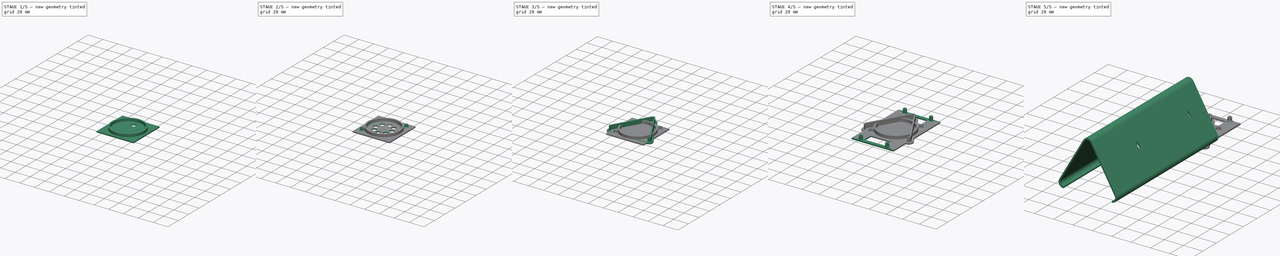
[diagram: build sequence overview — one tinted view per stage of 5, left to right]
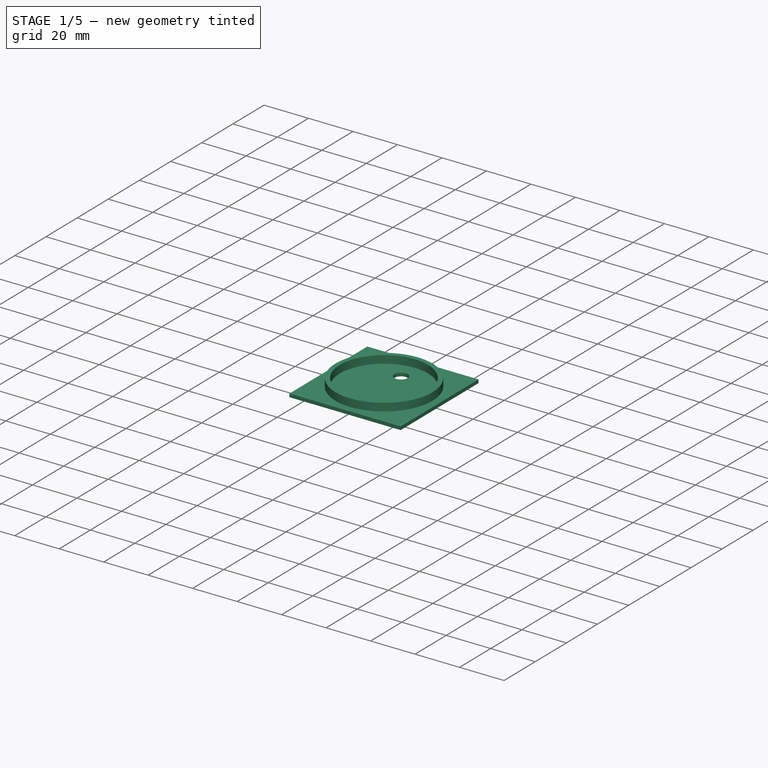
[diagram: stage 1 of 5 — iso view after this stage's code; geometry added in this stage tinted green]
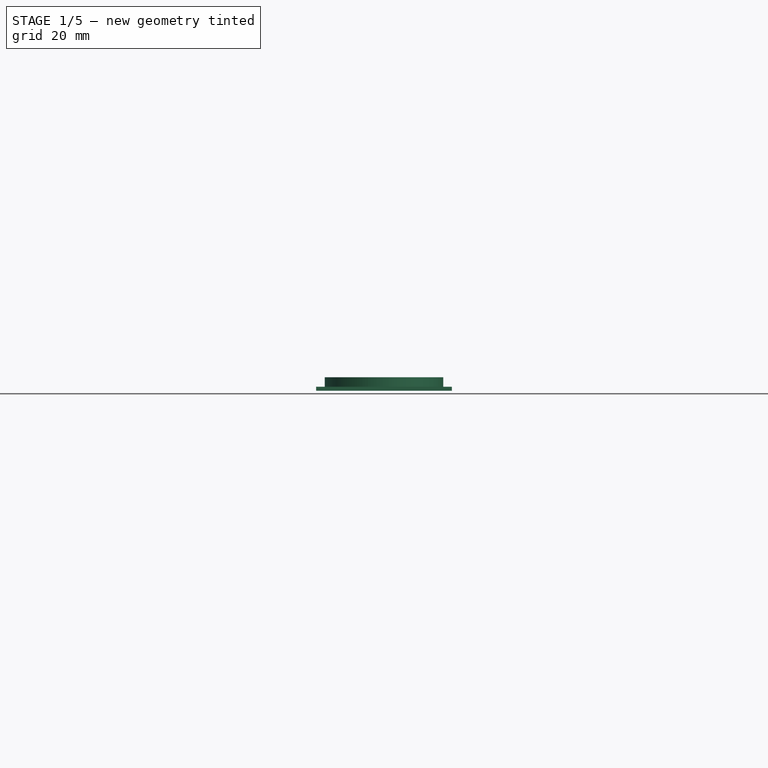
[diagram: stage 1 of 5 — front view after this stage's code; geometry added in this stage tinted green]
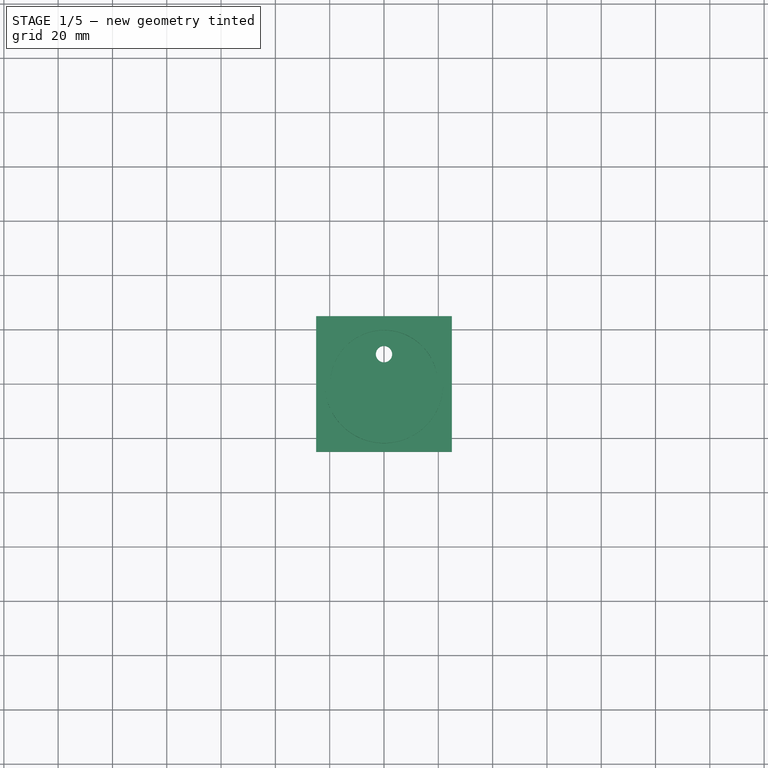
[diagram: stage 1 of 5 — top view after this stage's code; geometry added in this stage tinted green]
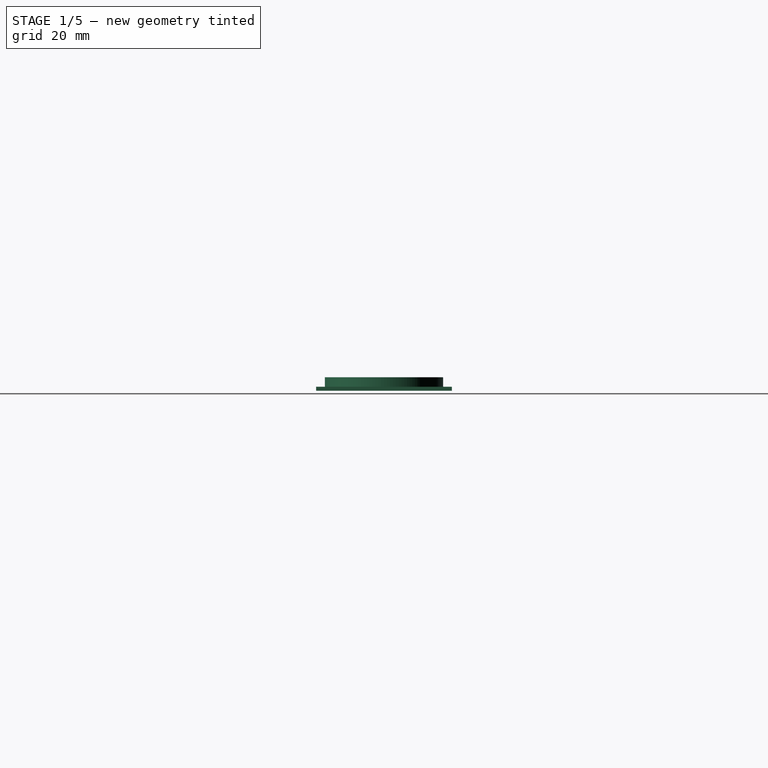
[diagram: stage 1 of 5 — right view after this stage's code; geometry added in this stage tinted green]
FCSTD DOCUMENT  (FreeCAD 0.21R33694 (Git))
Label: dinger
License: All rights reserved
LicenseURL: http://en.wikipedia.org/wiki/All_rights_reserved
objects: Sketcher::SketchObject×13, PartDesign::Pad×10, PartDesign::Body×5, PartDesign::Pocket×3, PartDesign::PolarPattern×2, PartDesign::Fillet×2
note: 50 computed .brp shape members not serialized (recipe doc carries the construction recipe); baked Part::Feature solids carry a one-line shape summary decoded from their .brp

FEATURE [Sketcher::SketchObject] Sketch004
  FullyConstrained = true
  MapMode = 5
  Support = -> [XY_Plane002]
  sketch-geometry (2):
    g0: Circle CenterX=0 CenterY=0 CenterZ=0 NormalX=0 NormalY=0 NormalZ=1 AngleXU=0 Radius=19
    g1: Circle CenterX=0 CenterY=0 CenterZ=0 NormalX=0 NormalY=0 NormalZ=1 AngleXU=0 Radius=20
  constraints (4):
    c: Coincident(g0,g-1)
    c: Coincident(g1,g0)
    c: Diameter(g1) = 40
    c: Diameter(g0) = 38
FEATURE [Sketcher::SketchObject] Sketch005
  FullyConstrained = true
  MapMode = 5
  Support = -> [XY_Plane002]
  sketch-geometry (2):
    g0: Circle CenterX=0 CenterY=0 CenterZ=0 NormalX=0 NormalY=0 NormalZ=1 AngleXU=0 Radius=19
    g1: Circle CenterX=0 CenterY=11 CenterZ=0 NormalX=0 NormalY=0 NormalZ=1 AngleXU=0 Radius=3
  constraints (5):
    c: Coincident(g0,g-1)
    c: Diameter(g0) = 38
    c: PointOnObject(g1,g-2)
    c: DistanceY(g0,g1) = 11
    c: Diameter(g1) = 6
FEATURE [Sketcher::SketchObject] Sketch006
  FullyConstrained = true
  MapMode = 5
  Support = -> [XY_Plane002]
  sketch-geometry (2):
    g0: Circle CenterX=0 CenterY=0 CenterZ=0 NormalX=0 NormalY=0 NormalZ=1 AngleXU=0 Radius=19.8
    g1: Circle CenterX=0 CenterY=0 CenterZ=0 NormalX=0 NormalY=0 NormalZ=1 AngleXU=0 Radius=21.8
  constraints (4):
    c: Coincident(g0,g-1)
    c: Coincident(g1,g0)
    c: Diameter(g0) = 39.6
    c: Diameter(g1) = 43.6
FEATURE [Sketcher::SketchObject] Sketch007
  FullyConstrained = true
  MapMode = 5
  Support = -> [XY_Plane002]
  sketch-geometry (6):
    g0: LineSegment StartX=-25 StartY=25 StartZ=0 EndX=-25 EndY=-25 EndZ=0
    g1: LineSegment StartX=-25 StartY=-25 StartZ=0 EndX=25 EndY=-25 EndZ=0
    g2: LineSegment StartX=25 StartY=-25 StartZ=0 EndX=25 EndY=25 EndZ=0
    g3: LineSegment StartX=25 StartY=25 StartZ=0 EndX=-25 EndY=25 EndZ=0
    g4: GeomPoint X=0 Y=0 Z=0
    g5: Circle CenterX=0 CenterY=0 CenterZ=0 NormalX=0 NormalY=0 NormalZ=1 AngleXU=0 Radius=19
  constraints (14):
    c: Coincident(g0,g1)
    c: Coincident(g1,g2)
    c: Coincident(g2,g3)
    c: Coincident(g3,g0)
    c: Horizontal(g1)
    c: Horizontal(g3)
    c: Vertical(g0)
    c: Vertical(g2)
    c: Symmetric(g1,g0,g4)
    c: Coincident(g4,g-1)
    c: DistanceX(g3,g3) = 50
    c: DistanceY(g2,g2) = 50
    c: Coincident(g5,g4)
    c: Diameter(g5) = 38
FEATURE [PartDesign::Pad] Pad003
  Direction = (0,0,1)
  Length = 1.5
  Length2 = 10
  Profile = -> Sketch007
  ReferenceAxis = -> Sketch007 [N_Axis]
  Type = 0
FEATURE [PartDesign::Pad] Pad004
  BaseFeature = -> Pad003
  Direction = (0,0,1)
  Length = 5
  Length2 = 10
  Profile = -> Sketch006
  ReferenceAxis = -> Sketch006 [N_Axis]
  Type = 0
FEATURE [PartDesign::Pocket] Pocket001
  BaseFeature = -> Pad004
  Direction = (0,0,-1)
  Length = 5
  Length2 = 5
  Midplane = true
  Profile = -> Sketch005
  ReferenceAxis = -> Sketch005 [N_Axis]
  Type = 1
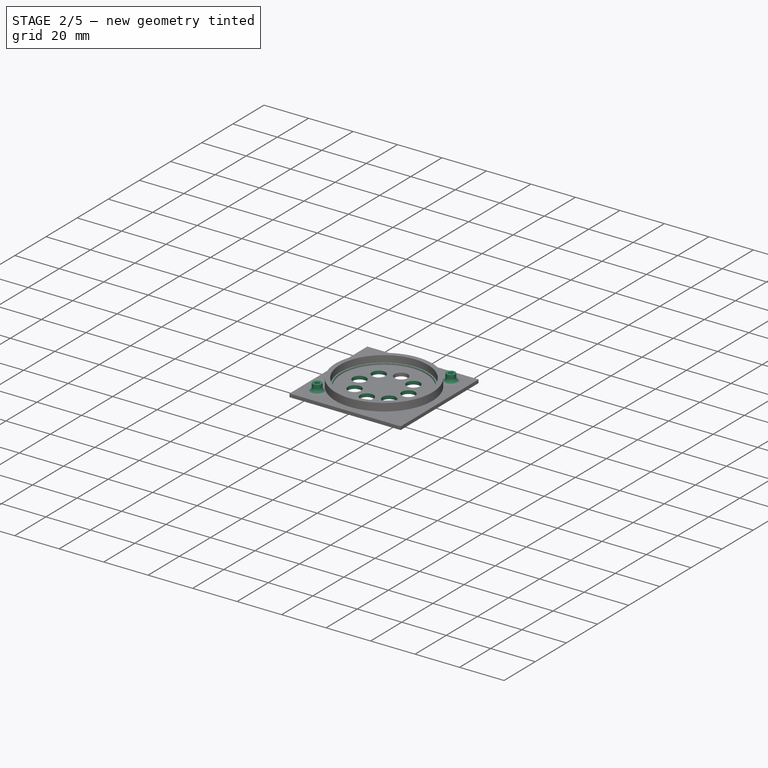
[diagram: stage 2 of 5 — iso view after this stage's code; geometry added in this stage tinted green]
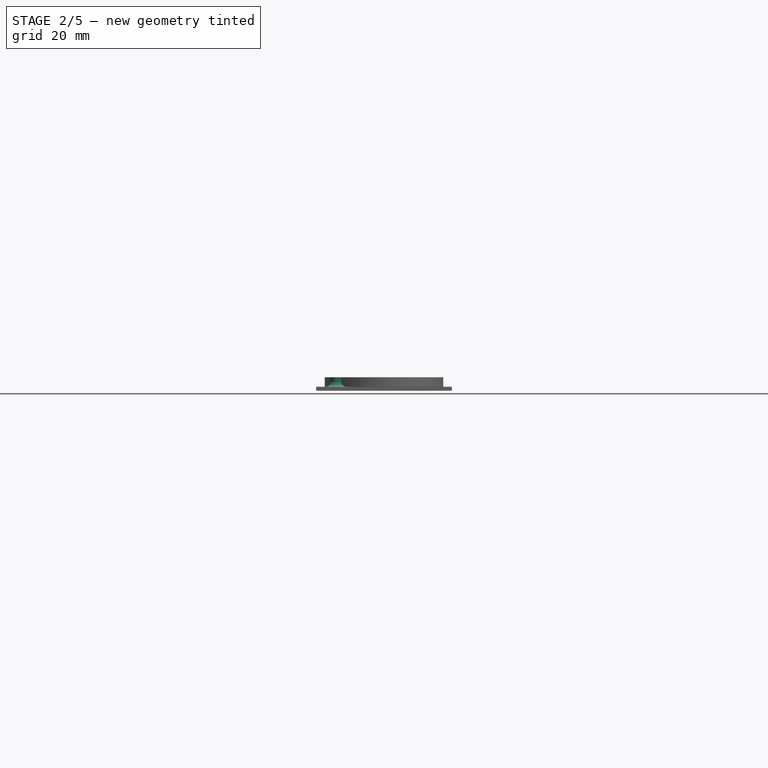
[diagram: stage 2 of 5 — front view after this stage's code; geometry added in this stage tinted green]
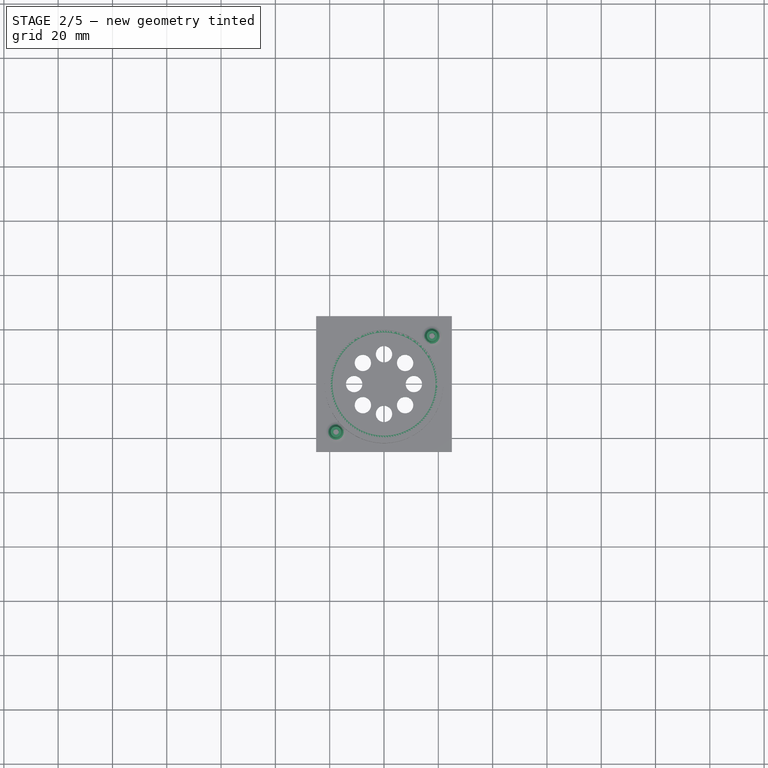
[diagram: stage 2 of 5 — top view after this stage's code; geometry added in this stage tinted green]
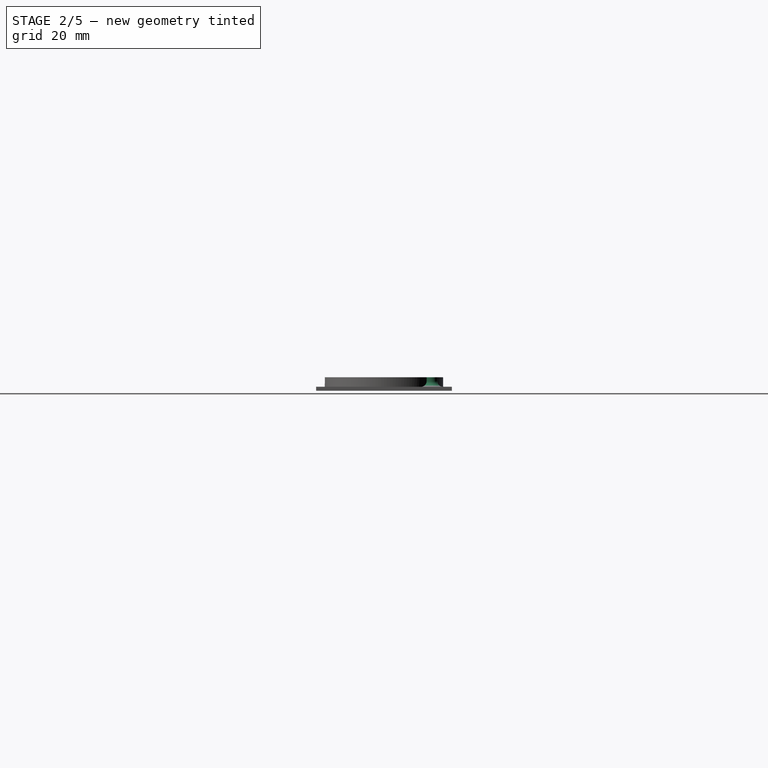
[diagram: stage 2 of 5 — right view after this stage's code; geometry added in this stage tinted green]
FEATURE [PartDesign::PolarPattern] PolarPattern
  Angle = 360
  Axis = -> Sketch005 [N_Axis]
  BaseFeature = -> Pocket001
  Occurrences = 8
  Originals = -> [Pocket001]
FEATURE [PartDesign::Pad] Pad005
  BaseFeature = -> PolarPattern
  Direction = (0,0,1)
  Length = 2
  Length2 = 10
  Profile = -> Sketch004
  ReferenceAxis = -> Sketch004 [N_Axis]
  Type = 0
FEATURE [PartDesign::Body] Body004  label="caps"
  Group = -> [Sketch012,Pad007,Sketch013,Pad008,Sketch014,Pocket,PolarPattern001]
  Origin = -> Origin004
  Placement = pos=(72,-39,0) rot=(0,0,1;0rad)
  Tip = -> PolarPattern001
FEATURE [Sketcher::SketchObject] Sketch015
  FullyConstrained = true
  MapMode = 5
  Support = -> [XY_Plane002]
  sketch-geometry (6):
    g0: GeomPoint X=3e-16 Y=-1e-16 Z=0
    g1: Circle CenterX=-17.6777 CenterY=-17.6777 CenterZ=0 NormalX=0 NormalY=0 NormalZ=1 AngleXU=0 Radius=1
    g2: Circle CenterX=-17.6777 CenterY=-17.6777 CenterZ=0 NormalX=0 NormalY=0 NormalZ=1 AngleXU=0 Radius=2
    g3: Circle CenterX=17.6777 CenterY=17.6777 CenterZ=0 NormalX=0 NormalY=0 NormalZ=1 AngleXU=0 Radius=1
    g4: Circle CenterX=17.6777 CenterY=17.6777 CenterZ=0 NormalX=0 NormalY=0 NormalZ=1 AngleXU=0 Radius=2
    g5: LineSegment StartX=3e-16 StartY=-1e-16 StartZ=0 EndX=17.6777 EndY=17.6777 EndZ=0
  constraints (12):
    c: Coincident(g0,g-1)
    c: Distance(g1,g3) = 50
    c: Coincident(g2,g1)
    c: Coincident(g4,g3)
    c: Equal(g4,g2)
    c: Equal(g1,g3)
    c: Diameter(g2) = 4
    c: Diameter(g1) = 2
    c: Symmetric(g1,g3,g0)
    c: Coincident(g5,g0)
    c: Coincident(g5,g3)
    c: Angle(g-1,g5) = 0.785398
FEATURE [PartDesign::Pad] Pad009
  BaseFeature = -> Pad005
  Direction = (0,0,1)
  Length = 5
  Length2 = 10
  Profile = -> Sketch015
  ReferenceAxis = -> Sketch015 [N_Axis]
  Type = 0
FEATURE [PartDesign::Fillet] Fillet001
  Base = -> Pad009 [Edge16,Edge18]
  BaseFeature = -> Pad009
  Radius = 2
  SupportTransform = false
  UseAllEdges = false
FEATURE [PartDesign::Body] Body002  label="speaker"
  Group = -> [Sketch007,Pad003,Sketch006,Pad004,Sketch005,Pocket001,PolarPattern,Sketch004,Pad005,Sketch015,Pad009,Fillet001]
  Origin = -> Origin002
  Placement = pos=(0,-125,0) rot=(0,0,1;0rad)
  Tip = -> Fillet001
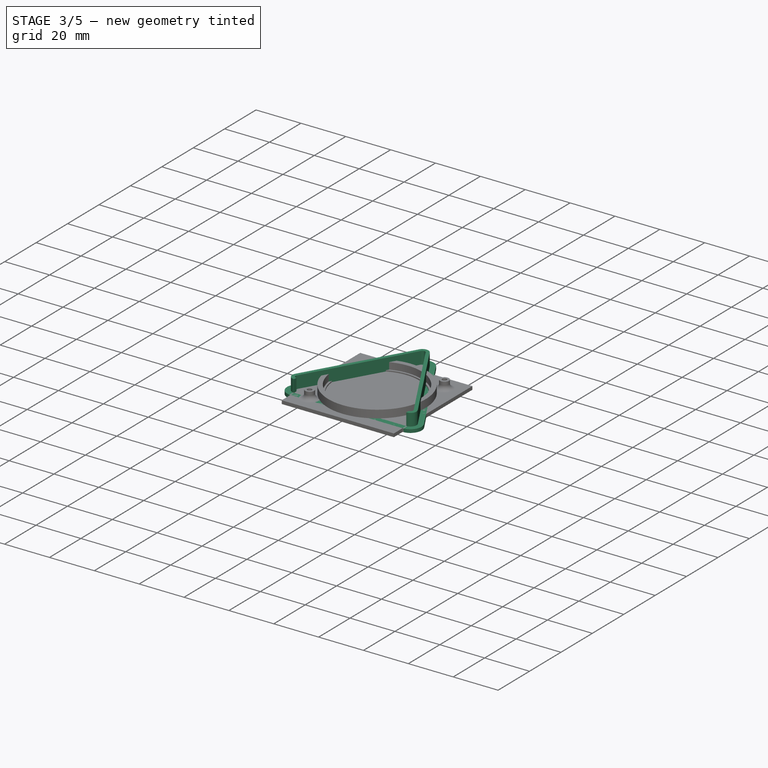
[diagram: stage 3 of 5 — iso view after this stage's code; geometry added in this stage tinted green]
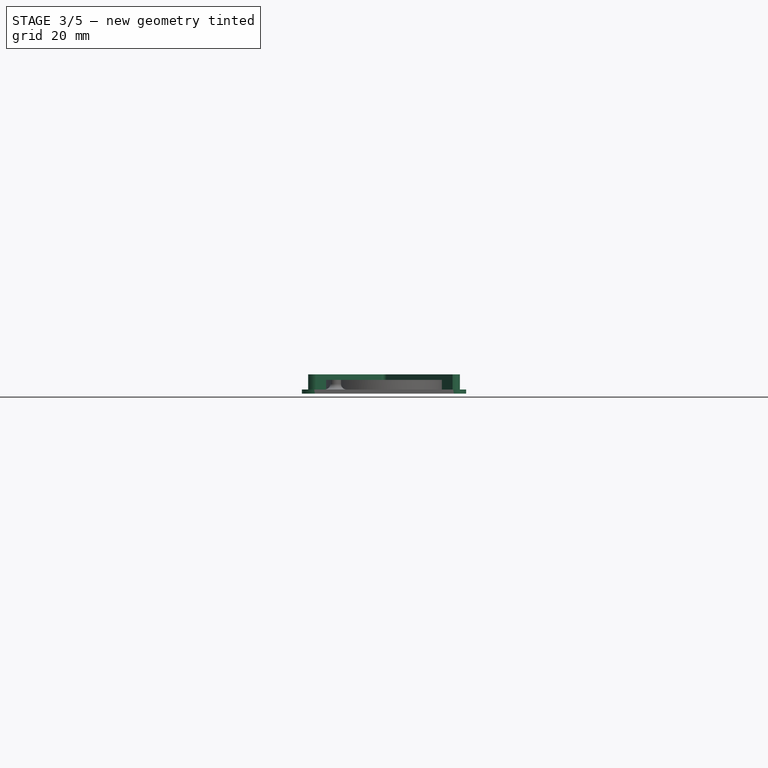
[diagram: stage 3 of 5 — front view after this stage's code; geometry added in this stage tinted green]
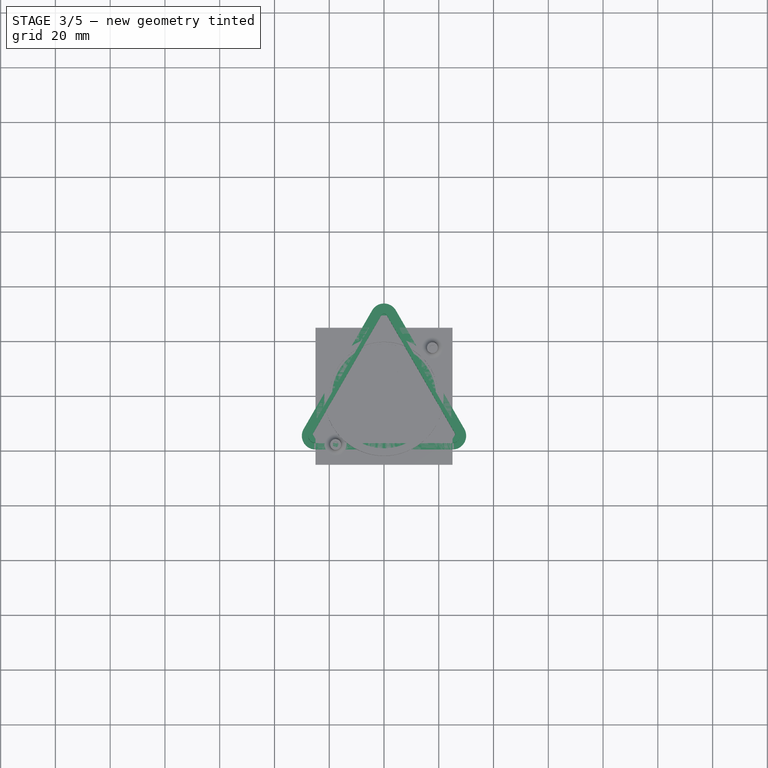
[diagram: stage 3 of 5 — top view after this stage's code; geometry added in this stage tinted green]
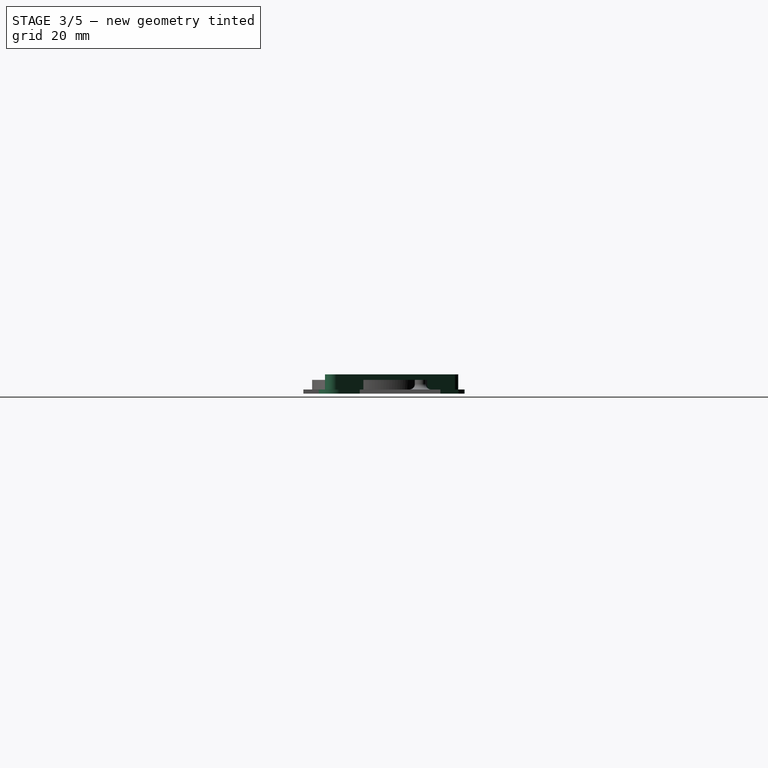
[diagram: stage 3 of 5 — right view after this stage's code; geometry added in this stage tinted green]
FEATURE [PartDesign::Body] Body003  label="button"
  Group = -> [Sketch011,Pad006]
  Origin = -> Origin003
  Placement = pos=(0,-10,0) rot=(0,0,1;0rad)
  Tip = -> Pad006
FEATURE [Sketcher::SketchObject] Sketch013
  FullyConstrained = true
  MapMode = 5
  Support = -> [XY_Plane004]
  sketch-geometry (9):
    g0: LineSegment StartX=29.3301 StartY=-11.9338 StartZ=0 EndX=4.33013 EndY=31.3675 EndZ=0
    g1: LineSegment StartX=-4.33013 StartY=31.3675 StartZ=0 EndX=-29.3301 EndY=-11.9338 EndZ=0
    g2: ArcOfCircle CenterX=0 CenterY=28.8675 CenterZ=0 NormalX=0 NormalY=0 NormalZ=1 AngleXU=0 Radius=5 StartAngle=0.523599 EndAngle=2.61799
    g3: ArcOfCircle CenterX=-25 CenterY=-14.4338 CenterZ=0 NormalX=0 NormalY=0 NormalZ=1 AngleXU=0 Radius=5 StartAngle=2.61799 EndAngle=4.71239
    g4: ArcOfCircle CenterX=25 CenterY=-14.4338 CenterZ=0 NormalX=0 NormalY=0 NormalZ=1 AngleXU=0 Radius=5 StartAngle=4.71239 EndAngle=6.80678
    g5: LineSegment StartX=25 StartY=-19.4338 StartZ=0 EndX=-25 EndY=-19.4338 EndZ=0
    g6: LineSegment StartX=0 StartY=28.8675 StartZ=0 EndX=0 EndY=0 EndZ=0
    g7: LineSegment StartX=-25 StartY=-14.4338 StartZ=0 EndX=0 EndY=0 EndZ=0
    g8: LineSegment StartX=0 StartY=0 StartZ=0 EndX=25 EndY=-14.4338 EndZ=0
  constraints (21):
    c: Distance(g1) = 50
    c: Diameter(g2) = 10
    c: Tangent(g5,g3) = 1.5708
    c: Tangent(g5,g4) = 1.5708
    c: Equal(g0,g5)
    c: Horizontal(g5)
    c: Equal(g4,g2)
    c: Equal(g2,g3)
    c: Equal(g1,g5)
    c: Tangent(g1,g3) = -1.5708
    c: Tangent(g0,g4) = -1.5708
    c: Tangent(g2,g0) = -1.5708
    c: Tangent(g1,g2) = -1.5708
    c: PointOnObject(g2,g-2)
    c: Coincident(g6,g2)
    c: Coincident(g6,g-1)
    c: Coincident(g7,g3)
    c: Coincident(g7,g6)
    c: Coincident(g8,g6)
    c: Coincident(g8,g4)
    c: Equal(g6,g7)
FEATURE [Sketcher::SketchObject] Sketch012
  ExternalGeometry = -> [Sketch013]
  FullyConstrained = true
  MapMode = 5
  Support = -> [XY_Plane004]
  sketch-geometry (25):
    g0: LineSegment StartX=27.3383 StartY=-13.0838 StartZ=0 EndX=2.33827 EndY=30.2175 EndZ=0
    g1: LineSegment StartX=-2.33827 StartY=30.2175 StartZ=0 EndX=-27.3383 EndY=-13.0838 EndZ=0
    g2: ArcOfCircle CenterX=0 CenterY=28.8675 CenterZ=0 NormalX=0 NormalY=0 NormalZ=1 AngleXU=0 Radius=2.7 StartAngle=0.523599 EndAngle=2.61799
    g3: LineSegment StartX=26.0392 StartY=-13.8338 StartZ=0 EndX=1.03923 EndY=29.4675 EndZ=0
    g4: LineSegment StartX=-1.03923 StartY=29.4675 StartZ=0 EndX=-26.0392 EndY=-13.8338 EndZ=0
    g5: ArcOfCircle CenterX=-1e-16 CenterY=28.8675 CenterZ=0 NormalX=0 NormalY=0 NormalZ=1 AngleXU=0 Radius=1.2 StartAngle=0.523599 EndAngle=2.61799
    g6: ArcOfCircle CenterX=-25 CenterY=-14.4338 CenterZ=0 NormalX=0 NormalY=0 NormalZ=1 AngleXU=0 Radius=2.7 StartAngle=2.61799 EndAngle=4.71239
    g7: ArcOfCircle CenterX=25 CenterY=-14.4338 CenterZ=0 NormalX=0 NormalY=0 NormalZ=1 AngleXU=0 Radius=2.7 StartAngle=4.71239 EndAngle=6.80678
    g8: LineSegment StartX=-2.33827 StartY=30.2175 StartZ=0 EndX=-1.03923 EndY=29.4675 EndZ=0
    g9: LineSegment StartX=2.33827 StartY=30.2175 StartZ=0 EndX=1.03923 EndY=29.4675 EndZ=0
    g10: ArcOfCircle CenterX=-25 CenterY=-14.4338 CenterZ=0 NormalX=0 NormalY=0 NormalZ=1 AngleXU=0 Radius=1.2 StartAngle=2.61799 EndAngle=4.71239
    g11: ArcOfCircle CenterX=25 CenterY=-14.4338 CenterZ=0 NormalX=0 NormalY=0 NormalZ=1 AngleXU=0 Radius=1.2 StartAngle=4.71239 EndAngle=6.80678
    g12: LineSegment StartX=0 StartY=28.8675 StartZ=0 EndX=0 EndY=3.6e-15 EndZ=0
    g13: LineSegment StartX=-25 StartY=-14.4338 StartZ=0 EndX=0 EndY=3.6e-15 EndZ=0
    g14: LineSegment StartX=0 StartY=3.6e-15 StartZ=0 EndX=25 EndY=-14.4338 EndZ=0
    g15: LineSegment StartX=-29.3301 StartY=-11.9338 StartZ=0 EndX=-27.3383 EndY=-13.0838 EndZ=0
    g16: LineSegment StartX=29.3301 StartY=-11.9338 StartZ=0 EndX=27.3383 EndY=-13.0838 EndZ=0
    g17: LineSegment StartX=4.33013 StartY=31.3675 StartZ=0 EndX=2.33827 EndY=30.2175 EndZ=0
    g18: LineSegment StartX=-4.33013 StartY=31.3675 StartZ=0 EndX=-2.33827 EndY=30.2175 EndZ=0
    g19: LineSegment StartX=-27.3383 StartY=-13.0838 StartZ=0 EndX=-26.0392 EndY=-13.8338 EndZ=0
    g20: LineSegment StartX=27.3383 StartY=-13.0838 StartZ=0 EndX=26.0392 EndY=-13.8338 EndZ=0
    g21: LineSegment StartX=25 StartY=-15.6338 StartZ=0 EndX=25 EndY=-17.1338 EndZ=0
    g22: LineSegment StartX=25 StartY=-17.1338 StartZ=0 EndX=25 EndY=-19.4338 EndZ=0
    g23: LineSegment StartX=-25 StartY=-15.6338 StartZ=0 EndX=-25 EndY=-17.1338 EndZ=0
    g24: LineSegment StartX=-25 StartY=-17.1338 StartZ=0 EndX=-25 EndY=-19.4338 EndZ=0
  constraints (58):
    c: Perpendicular(g1,g8)
    c: Perpendicular(g9,g0)
    c: Distance(g8) = 1.5
    c: Tangent(g0,g2) = -1.5708
    c: Tangent(g1,g2) = -1.5708
    c: Tangent(g4,g5) = -1.5708
    c: Tangent(g3,g5) = -1.5708
    c: Tangent(g10,g4) = -1.5708
    c: Tangent(g3,g11) = -1.5708
    c: Parallel(g3,g0)
    c: Coincident(g9,g0)
    c: Coincident(g9,g3)
    c: Coincident(g4,g8)
    c: Coincident(g8,g1)
    c: Tangent(g1,g6) = -1.5708
    c: Tangent(g7,g0) = -1.5708
    c: Vertical(g10,g6)
    c: Vertical(g11,g7)
    c: Equal(g2,g6)
    c: Equal(g6,g7)
    c: Equal(g5,g10)
    c: Coincident(g12,g2)
    c: Coincident(g12,g-1)
    c: Coincident(g13,g6)
    c: Coincident(g13,g12)
    c: Coincident(g14,g12)
    c: Coincident(g14,g7)
    c: Equal(g12,g13)
    c: PointOnObject(g2,g-2)
    c: Coincident(g15,g-3)
    c: Coincident(g15,g1)
    c: Coincident(g16,g-4)
    c: Coincident(g16,g0)
    c: Coincident(g17,g-4)
    c: Coincident(g17,g0)
    c: Perpendicular(g17,g-4)
    c: Perpendicular(g0,g17)
    c: Coincident(g18,g-3)
    c: Coincident(g18,g1)
    c: Perpendicular(g18,g-3)
    c: Coincident(g19,g1)
    c: Coincident(g19,g4)
    c: Coincident(g20,g0)
    c: Coincident(g20,g3)
    c: Coincident(g21,g11)
    c: Coincident(g21,g7)
    c: Coincident(g22,g7)
    c: Coincident(g22,g-5)
    c: Coincident(g23,g10)
    c: Coincident(g23,g6)
    c: Coincident(g24,g6)
    c: Coincident(g24,g-5)
    c: DistanceY(g24,g24) = 2.3
    c: Perpendicular(g6,g24)
    c: Coincident(g10,g6)
    c: Coincident(g7,g11)
    c: Perpendicular(g7,g21)
    c: Perpendicular(g-5,g22)
FEATURE [PartDesign::Pad] Pad007  label="brim"
  Direction = (0,0,1)
  Length = 7
  Length2 = 10
  Profile = -> Sketch012
  ReferenceAxis = -> Sketch012 [N_Axis]
  Type = 0
FEATURE [PartDesign::Pad] Pad008  label="wall"
  BaseFeature = -> Pad007
  Direction = (0,0,1)
  Length = 1.5
  Length2 = 10
  Profile = -> Sketch013
  ReferenceAxis = -> Sketch013 [N_Axis]
  Type = 0
FEATURE [Sketcher::SketchObject] Sketch014
  FullyConstrained = true
  MapMode = 5
  Placement = pos=(0,0,0) rot=(1,0,0;1.5708rad)
  Support = -> [XZ_Plane004]
  sketch-geometry (1):
    g0: Circle CenterX=0 CenterY=4 CenterZ=0 NormalX=0 NormalY=0 NormalZ=1 AngleXU=0 Radius=1
  constraints (3):
    c: PointOnObject(g0,g-2)
    c: DistanceY(g-1,g0) = 4
    c: Diameter(g0) = 2
FEATURE [PartDesign::Pocket] Pocket
  BaseFeature = -> Pad008
  Direction = (0,1,2e-16)
  Length = 5
  Length2 = 5
  Profile = -> Sketch014
  ReferenceAxis = -> Sketch014 [N_Axis]
  Reversed = true
  Type = 1
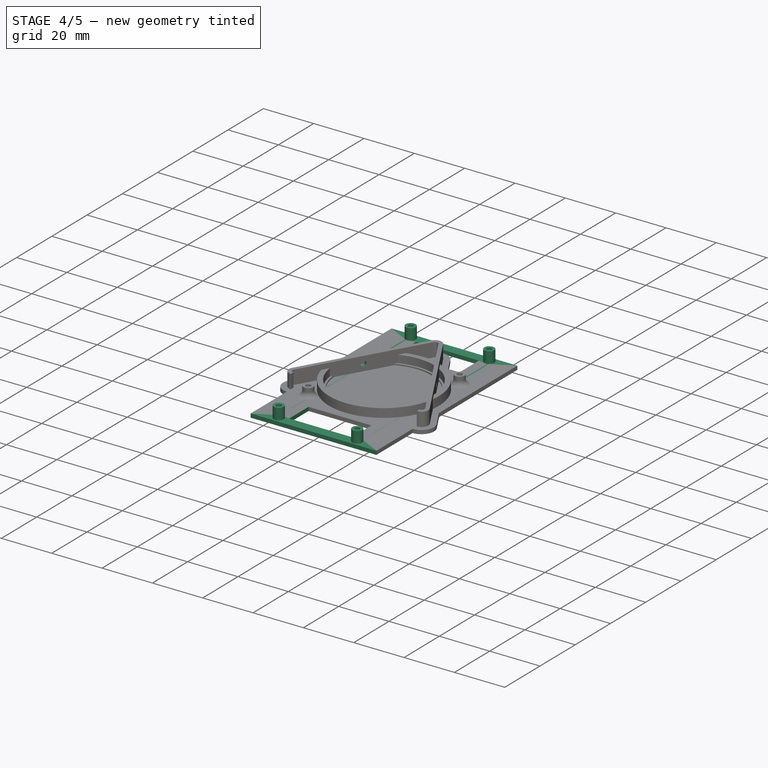
[diagram: stage 4 of 5 — iso view after this stage's code; geometry added in this stage tinted green]
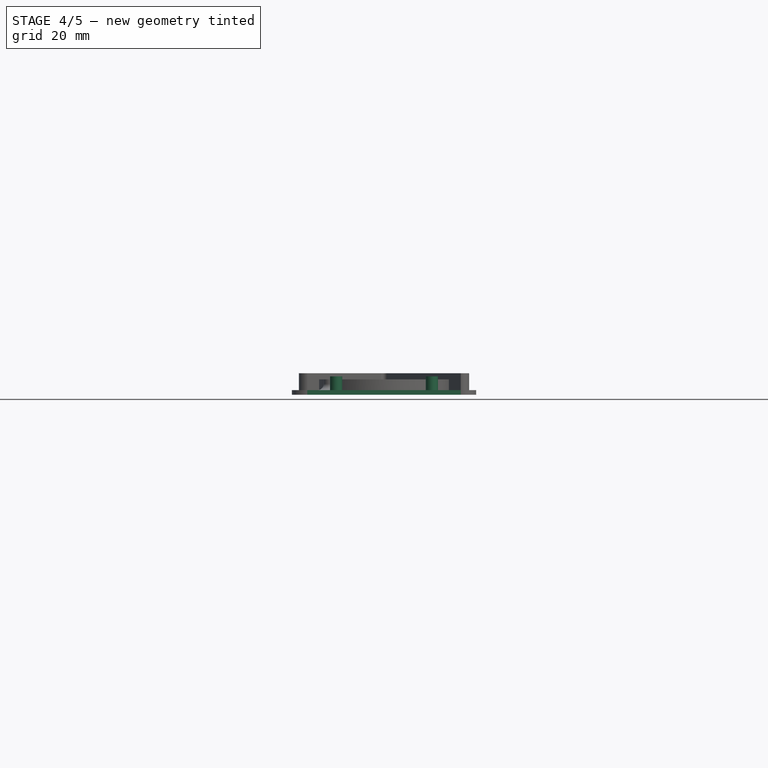
[diagram: stage 4 of 5 — front view after this stage's code; geometry added in this stage tinted green]
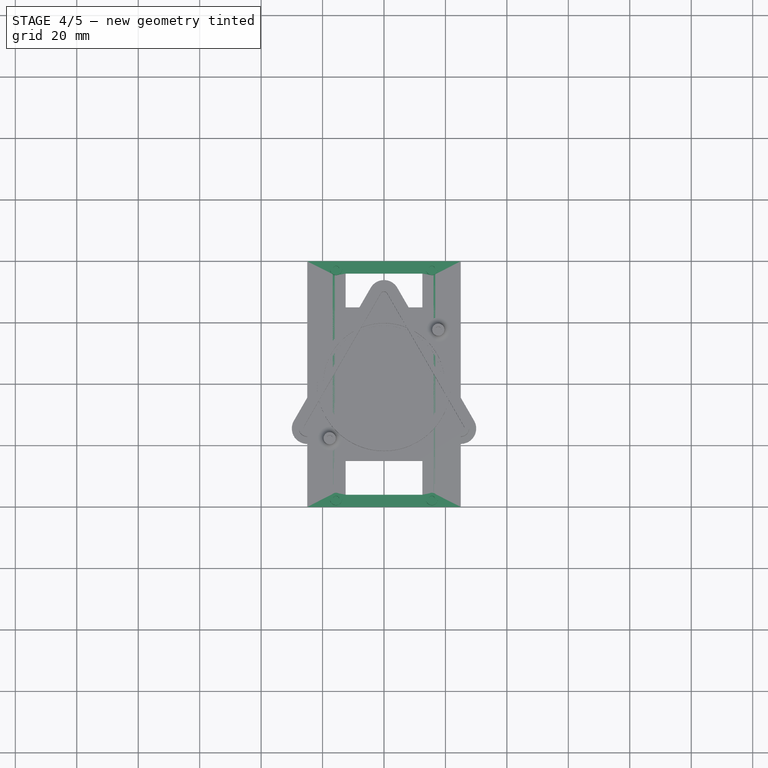
[diagram: stage 4 of 5 — top view after this stage's code; geometry added in this stage tinted green]
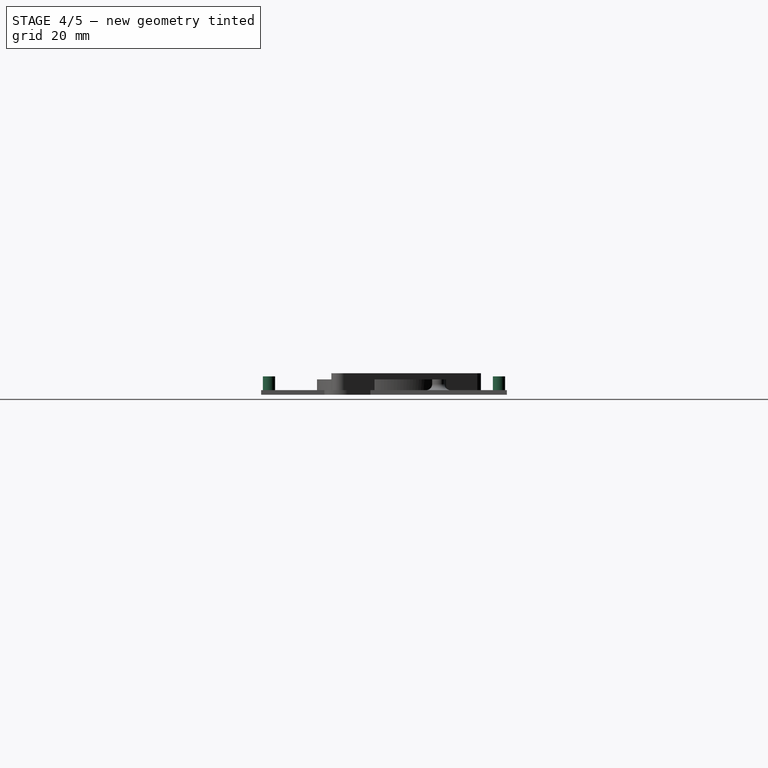
[diagram: stage 4 of 5 — right view after this stage's code; geometry added in this stage tinted green]
FEATURE [Sketcher::SketchObject] Sketch001
  FullyConstrained = true
  MapMode = 5
  Support = -> [XY_Plane001]
  sketch-geometry (10):
    g0: GeomPoint X=0 Y=0 Z=0
    g1: Circle CenterX=-15.59 CenterY=37.44 CenterZ=0 NormalX=0 NormalY=0 NormalZ=1 AngleXU=0 Radius=1
    g2: Circle CenterX=15.59 CenterY=37.44 CenterZ=0 NormalX=0 NormalY=0 NormalZ=1 AngleXU=0 Radius=1
    g3: Circle CenterX=-15.59 CenterY=-37.44 CenterZ=0 NormalX=0 NormalY=0 NormalZ=1 AngleXU=0 Radius=1
    g4: Circle CenterX=15.59 CenterY=-37.44 CenterZ=0 NormalX=0 NormalY=0 NormalZ=1 AngleXU=0 Radius=1
    g5: GeomPoint X=0 Y=0 Z=0
    g6: Circle CenterX=-15.59 CenterY=37.44 CenterZ=0 NormalX=0 NormalY=0 NormalZ=1 AngleXU=0 Radius=2
    g7: Circle CenterX=-15.59 CenterY=-37.44 CenterZ=0 NormalX=0 NormalY=0 NormalZ=1 AngleXU=0 Radius=2
    g8: Circle CenterX=15.59 CenterY=-37.44 CenterZ=0 NormalX=0 NormalY=0 NormalZ=1 AngleXU=0 Radius=2
    g9: Circle CenterX=15.59 CenterY=37.44 CenterZ=0 NormalX=0 NormalY=0 NormalZ=1 AngleXU=0 Radius=2
  constraints (19):
    c: Coincident(g0,g-1)
    c: Symmetric(g1,g2,g-2)
    c: DistanceX(g1,g2) = 31.18
    c: Symmetric(g1,g3,g-1)
    c: DistanceY(g3,g1) = 74.88
    c: Symmetric(g4,g3,g-2)
    c: Equal(g3,g1)
    c: Equal(g1,g4)
    c: Equal(g4,g2)
    c: Coincident(g5,g0)
    c: Coincident(g6,g1)
    c: Coincident(g7,g3)
    c: Coincident(g8,g4)
    c: Coincident(g9,g2)
    c: Equal(g9,g8)
    c: Equal(g8,g7)
    c: Equal(g7,g6)
    c: Diameter(g6) = 4
    c: Diameter(g1) = 2
FEATURE [Sketcher::SketchObject] Sketch003
  FullyConstrained = true
  MapMode = 5
  Support = -> [XY_Plane001]
  sketch-geometry (11):
    g0: LineSegment StartX=-12.5 StartY=36 StartZ=0 EndX=-12.5 EndY=-36 EndZ=0
    g1: LineSegment StartX=-12.5 StartY=-36 StartZ=0 EndX=12.5 EndY=-36 EndZ=0
    g2: LineSegment StartX=12.5 StartY=-36 StartZ=0 EndX=12.5 EndY=36 EndZ=0
    g3: LineSegment StartX=12.5 StartY=36 StartZ=0 EndX=-12.5 EndY=36 EndZ=0
    g4: GeomPoint X=0 Y=0 Z=0
    g5: GeomPoint X=0 Y=0 Z=0
    g6: LineSegment StartX=-25 StartY=40 StartZ=0 EndX=-25 EndY=-40 EndZ=0
    g7: LineSegment StartX=-25 StartY=-40 StartZ=0 EndX=25 EndY=-40 EndZ=0
    g8: LineSegment StartX=25 StartY=-40 StartZ=0 EndX=25 EndY=40 EndZ=0
    g9: LineSegment StartX=25 StartY=40 StartZ=0 EndX=-25 EndY=40 EndZ=0
    g10: GeomPoint X=0 Y=0 Z=0
  constraints (25):
    c: Coincident(g0,g1)
    c: Coincident(g1,g2)
    c: Coincident(g2,g3)
    c: Coincident(g3,g0)
    c: Horizontal(g1)
    c: Horizontal(g3)
    c: Vertical(g0)
    c: Vertical(g2)
    c: Symmetric(g1,g0,g4)
    c: Coincident(g4,g-1)
    c: Coincident(g5,g4)
    c: DistanceX(g3,g3) = 25
    c: DistanceY(g2,g2) = 72
    c: Coincident(g6,g7)
    c: Coincident(g7,g8)
    c: Coincident(g8,g9)
    c: Coincident(g9,g6)
    c: Horizontal(g7)
    c: Horizontal(g9)
    c: Vertical(g6)
    c: Vertical(g8)
    c: Symmetric(g7,g6,g10)
    c: Coincident(g10,g4)
    c: DistanceX(g9,g9) = 50
    c: DistanceY(g6,g6) = 80
FEATURE [PartDesign::Pad] Pad001  label="window"
  Direction = (0,0,1)
  Length = 1.5
  Length2 = 10
  Profile = -> Sketch003
  ReferenceAxis = -> Sketch003 [N_Axis]
  Type = 0
FEATURE [PartDesign::Pad] Pad002  label="screw mount"
  BaseFeature = -> Pad001
  Direction = (0,0,1)
  Length = 6
  Length2 = 10
  Profile = -> Sketch001
  ReferenceAxis = -> Sketch001 [N_Axis]
  Type = 0
FEATURE [PartDesign::Body] Body001  label="lcd"
  Group = -> [Sketch003,Sketch001,Pad001,Pad002,Fillet]
  Origin = -> Origin001
  Placement = pos=(0,-60,0) rot=(0,0,1;0rad)
  Tip = -> Fillet
FEATURE [Sketcher::SketchObject] Sketch011
  FullyConstrained = true
  MapMode = 5
  Support = -> [XY_Plane003]
  sketch-geometry (9):
    g0: LineSegment StartX=-25 StartY=10 StartZ=0 EndX=-25 EndY=-10 EndZ=0
    g1: LineSegment StartX=-25 StartY=-10 StartZ=0 EndX=25 EndY=-10 EndZ=0
    g2: LineSegment StartX=25 StartY=-10 StartZ=0 EndX=25 EndY=10 EndZ=0
    g3: LineSegment StartX=25 StartY=10 StartZ=0 EndX=-25 EndY=10 EndZ=0
    g4: GeomPoint X=0 Y=0 Z=0
    g5: Circle CenterX=-12.5 CenterY=0 CenterZ=0 NormalX=0 NormalY=0 NormalZ=1 AngleXU=0 Radius=3
    g6: Circle CenterX=12.5 CenterY=0 CenterZ=0 NormalX=0 NormalY=0 NormalZ=1 AngleXU=0 Radius=3.5
    g7: GeomPoint X=-25 Y=0 Z=0
    g8: GeomPoint X=25 Y=0 Z=0
  constraints (20):
    c: Coincident(g0,g1)
    c: Coincident(g1,g2)
    c: Coincident(g2,g3)
    c: Coincident(g3,g0)
    c: Horizontal(g1)
    c: Horizontal(g3)
    c: Vertical(g0)
    c: Vertical(g2)
    c: Symmetric(g1,g0,g4)
    c: Coincident(g4,g-1)
    c: DistanceX(g3,g3) = 50
    c: PointOnObject(g5,g-1)
    c: Diameter(g5) = 6
    c: Diameter(g6) = 7
    c: PointOnObject(g7,g0)
    c: PointOnObject(g8,g-1)
    c: PointOnObject(g8,g2)
    c: Symmetric(g8,g4,g6)
    c: Symmetric(g4,g7,g5)
    c: DistanceY(g2,g2) = 20
FEATURE [PartDesign::Pad] Pad006
  Direction = (0,0,1)
  Length = 1.5
  Length2 = 10
  Profile = -> Sketch011
  ReferenceAxis = -> Sketch011 [N_Axis]
  Type = 0
FEATURE [PartDesign::PolarPattern] PolarPattern001
  Angle = 360
  Axis = -> Z_Axis004
  BaseFeature = -> Pocket
  Occurrences = 3
  Originals = -> [Pocket]
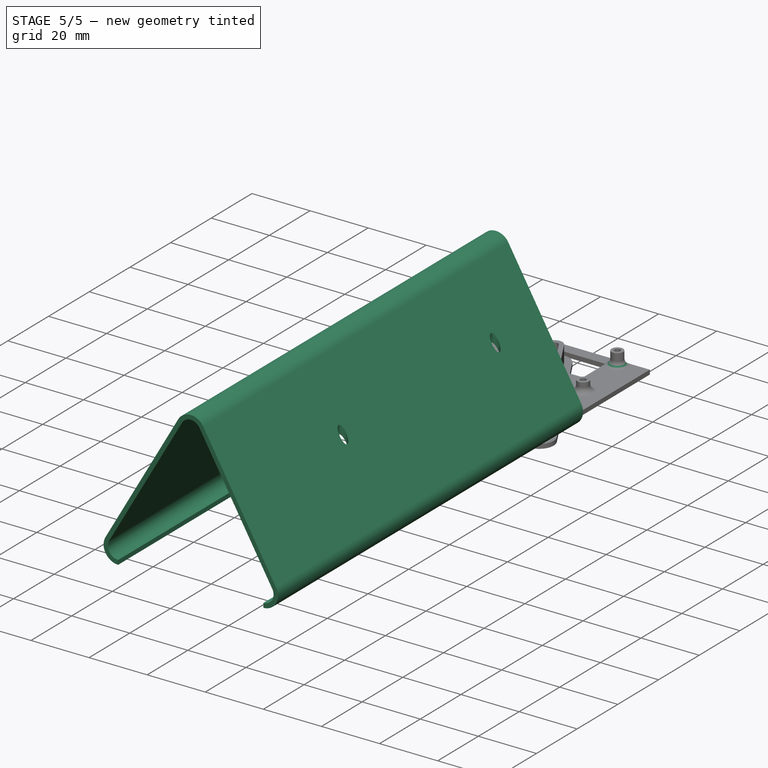
[diagram: stage 5 of 5 — iso view after this stage's code; geometry added in this stage tinted green]
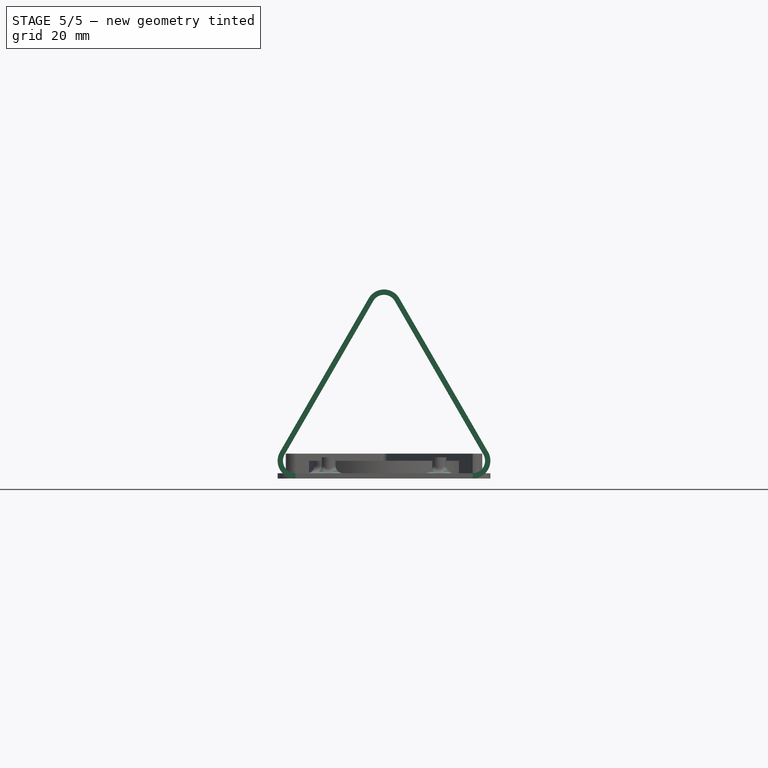
[diagram: stage 5 of 5 — front view after this stage's code; geometry added in this stage tinted green]
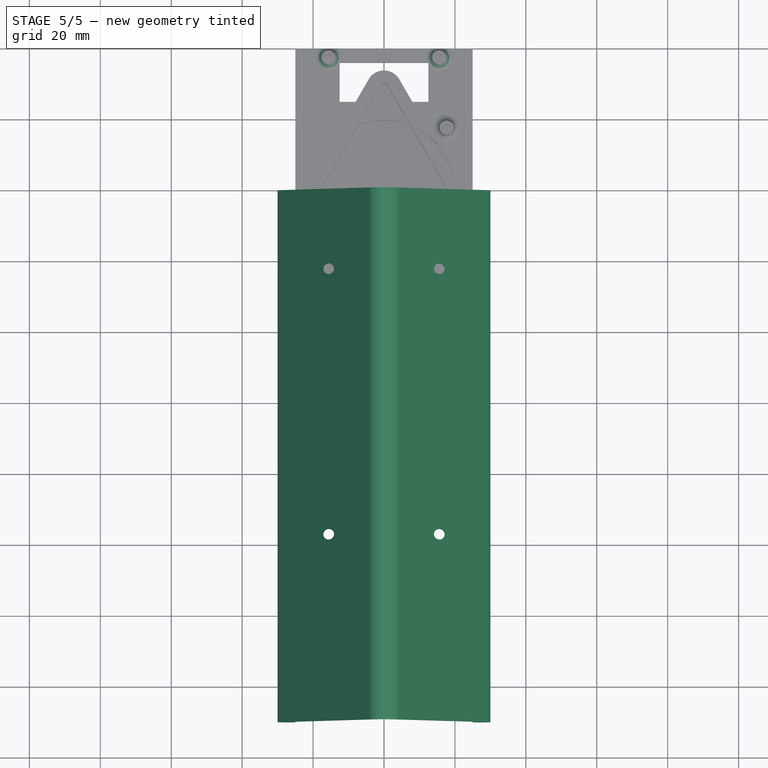
[diagram: stage 5 of 5 — top view after this stage's code; geometry added in this stage tinted green]
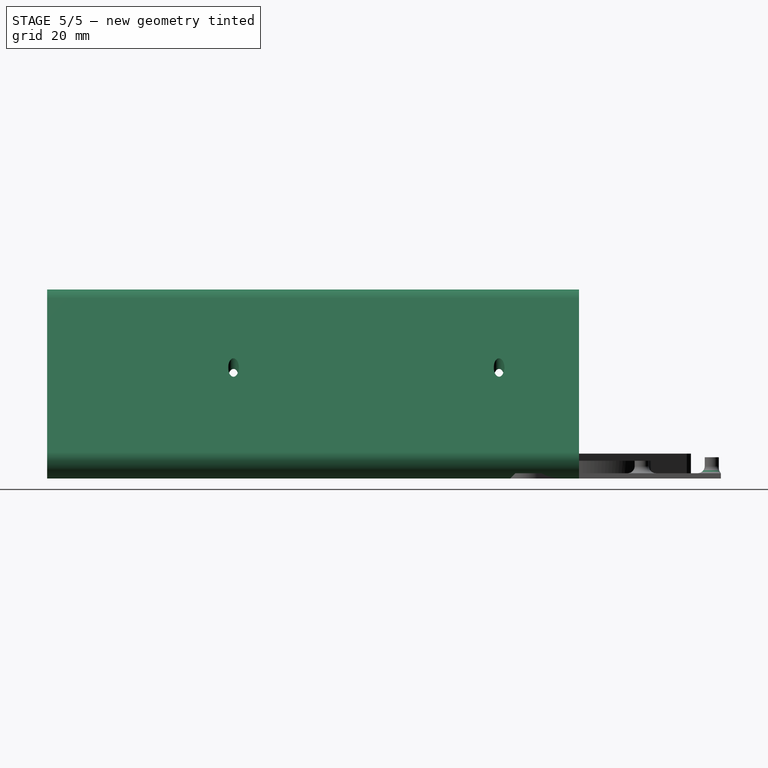
[diagram: stage 5 of 5 — right view after this stage's code; geometry added in this stage tinted green]
FEATURE [Sketcher::SketchObject] Sketch
  FullyConstrained = true
  MapMode = 5
  Placement = pos=(0,0,0) rot=(1,0,0;1.5708rad)
  Support = -> [XZ_Plane]
  sketch-geometry (20):
    g0: LineSegment StartX=29.3301 StartY=7.5 StartZ=0 EndX=4.33013 EndY=50.8013 EndZ=0
    g1: LineSegment StartX=-4.33013 StartY=50.8013 StartZ=0 EndX=-29.3301 EndY=7.5 EndZ=0
    g2: ArcOfCircle CenterX=0 CenterY=48.3013 CenterZ=0 NormalX=0 NormalY=0 NormalZ=1 AngleXU=0 Radius=5 StartAngle=0.523599 EndAngle=2.61799
    g3: GeomPoint X=0 Y=58.3013 Z=0
    g4: GeomPoint X=-33.6603 Y=0 Z=0
    g5: GeomPoint X=33.6603 Y=0 Z=0
    g6: LineSegment StartX=28.0311 StartY=6.75 StartZ=0 EndX=3.03109 EndY=50.0513 EndZ=0
    g7: LineSegment StartX=-3.03109 StartY=50.0513 StartZ=0 EndX=-28.0311 EndY=6.75 EndZ=0
    g8: ArcOfCircle CenterX=2.1e-15 CenterY=48.3013 CenterZ=0 NormalX=0 NormalY=0 NormalZ=1 AngleXU=0 Radius=3.5 StartAngle=0.523599 EndAngle=2.61799
    g9: GeomPoint X=0 Y=55.3013 Z=0
    g10: LineSegment StartX=-29.3301 StartY=7.5 StartZ=0 EndX=-28.0311 EndY=6.75 EndZ=0
    g11: LineSegment StartX=29.3301 StartY=7.5 StartZ=0 EndX=28.0311 EndY=6.75 EndZ=0
    g12: ArcOfCircle CenterX=-25 CenterY=5 CenterZ=0 NormalX=0 NormalY=0 NormalZ=1 AngleXU=0 Radius=5 StartAngle=2.61799 EndAngle=4.71239
    g13: ArcOfCircle CenterX=25 CenterY=5 CenterZ=0 NormalX=0 NormalY=0 NormalZ=1 AngleXU=0 Radius=5 StartAngle=4.71239 EndAngle=6.80678
    g14: LineSegment StartX=-4.33013 StartY=50.8013 StartZ=0 EndX=-3.03109 EndY=50.0513 EndZ=0
    g15: LineSegment StartX=4.33013 StartY=50.8013 StartZ=0 EndX=3.03109 EndY=50.0513 EndZ=0
    g16: ArcOfCircle CenterX=-25 CenterY=5 CenterZ=0 NormalX=0 NormalY=0 NormalZ=1 AngleXU=0 Radius=3.5 StartAngle=2.61799 EndAngle=4.71239
    g17: ArcOfCircle CenterX=25 CenterY=5 CenterZ=0 NormalX=0 NormalY=0 NormalZ=1 AngleXU=0 Radius=3.5 StartAngle=4.71239 EndAngle=6.80678
    g18: LineSegment StartX=-25 StartY=1.5 StartZ=0 EndX=-25 EndY=0 EndZ=0
    g19: LineSegment StartX=25 StartY=1.5 StartZ=0 EndX=25 EndY=0 EndZ=0
  constraints (51):
    c: PointOnObject(g4,g-1)
    c: PointOnObject(g5,g-1)
    c: PointOnObject(g3,g-2)
    c: PointOnObject(g3,g1)
    c: PointOnObject(g3,g0)
    c: Tangent(g1,g2) = -1.5708
    c: Tangent(g0,g2) = -1.5708
    c: PointOnObject(g4,g1)
    c: PointOnObject(g5,g0)
    c: Distance(g1) = 50
    c: PointOnObject(g2,g-2)
    c: PointOnObject(g9,g-2)
    c: PointOnObject(g9,g7)
    c: PointOnObject(g9,g6)
    c: Tangent(g7,g8) = -1.5708
    c: Tangent(g6,g8) = -1.5708
    c: Parallel(g7,g1)
    c: Coincident(g10,g1)
    c: Perpendicular(g1,g10)
    c: Distance(g1,g7) = 1.5
    c: Coincident(g11,g0)
    c: Perpendicular(g0,g11)
    c: Diameter(g2) = 10
    c: Coincident(g10,g7)
    c: Distance(g6,g0) = 1.5
    c: Tangent(g12,g1) = -1.5708
    c: Tangent(g13,g0) = -1.5708
    c: Tangent(g12,g-1) = -1.5708
    c: Tangent(g13,g-1) = -1.5708
    c: Coincident(g11,g6)
    c: Equal(g13,g2)
    c: Equal(g12,g2)
    c: Coincident(g14,g1)
    c: Coincident(g15,g0)
    c: PointOnObject(g15,g6)
    c: Perpendicular(g15,g0)
    c: Perpendicular(g14,g1)
    c: Coincident(g7,g14)
    c: DistanceX(g12,g13) = 50
    c: Coincident(g16,g7)
    c: Coincident(g17,g6)
    c: Equal(g16,g8)
    c: Equal(g17,g8)
    c: Vertical(g16,g12)
    c: Vertical(g17,g13)
    c: Coincident(g18,g16)
    c: Coincident(g18,g12)
    c: Coincident(g19,g17)
    c: Coincident(g19,g13)
    c: DistanceY(g18,g18) = 1.5
    c: DistanceY(g19,g19) = 1.5
FEATURE [PartDesign::Pad] Pad
  Direction = (0,-1,-2e-16)
  Length = 150
  Length2 = 10
  Placement = pos=(0,0,0) rot=(1,0,0;1.5708rad)
  Profile = -> Sketch
  ReferenceAxis = -> Sketch [N_Axis]
  Type = 0
FEATURE [Sketcher::SketchObject] Sketch010
  AttachmentOffset = pos=(0,-60,-1) rot=(0,0,1;0rad)
  FullyConstrained = true
  MapMode = 5
  Placement = pos=(0,-60,-1) rot=(0,0,1;0rad)
  Support = -> [XY_Plane]
  sketch-geometry (6):
    g0: GeomPoint X=0 Y=0 Z=0
    g1: GeomPoint X=0 Y=0 Z=0
    g2: Circle CenterX=-15.59 CenterY=37.44 CenterZ=0 NormalX=0 NormalY=0 NormalZ=1 AngleXU=0 Radius=1.5
    g3: Circle CenterX=-15.59 CenterY=-37.44 CenterZ=0 NormalX=0 NormalY=0 NormalZ=1 AngleXU=0 Radius=1.5
    g4: Circle CenterX=15.59 CenterY=-37.44 CenterZ=0 NormalX=0 NormalY=0 NormalZ=1 AngleXU=0 Radius=1.5
    g5: Circle CenterX=15.59 CenterY=37.44 CenterZ=0 NormalX=0 NormalY=0 NormalZ=1 AngleXU=0 Radius=1.5
  constraints (12):
    c: Coincident(g0,g-1)
    c: Coincident(g1,g0)
    c: Equal(g5,g4)
    c: Equal(g4,g3)
    c: Equal(g3,g2)
    c: Diameter(g2) = 3
    c: Symmetric(g3,g5,g0)
    c: Symmetric(g2,g4,g0)
    c: DistanceY(g3,g2) = 74.88
    c: DistanceX(g2,g5) = 31.18
    c: Horizontal(g2,g5)
    c: Vertical(g2,g3)
FEATURE [PartDesign::Pocket] Pocket002
  BaseFeature = -> Pad
  Direction = (0,0,-1)
  Length = 5
  Length2 = 5
  Midplane = true
  Placement = pos=(0,0,0) rot=(1,0,0;1.5708rad)
  Profile = -> Sketch010
  ReferenceAxis = -> Sketch010 [N_Axis]
  Type = 1
FEATURE [PartDesign::Body] Body  label="housing"
  Group = -> [Sketch,Pad,Sketch010,Pocket002]
  Origin = -> Origin
  Tip = -> Pocket002
FEATURE [PartDesign::Fillet] Fillet
  Base = -> Pad002 [Edge23,Edge28,Edge21,Edge22]
  BaseFeature = -> Pad002
  Radius = 2
  SupportTransform = false
  UseAllEdges = false
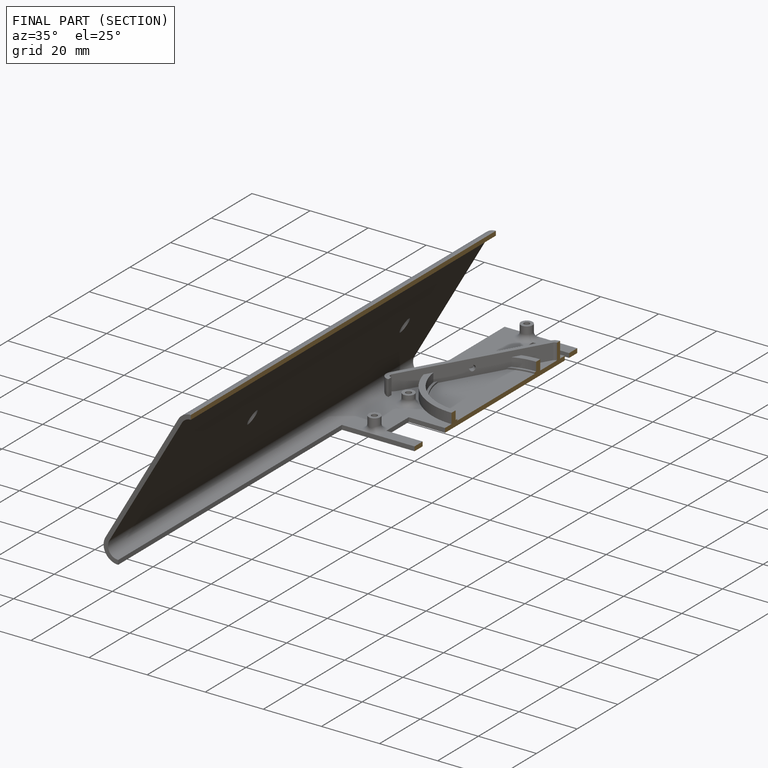
[diagram: finished part — half-section view (interior)]
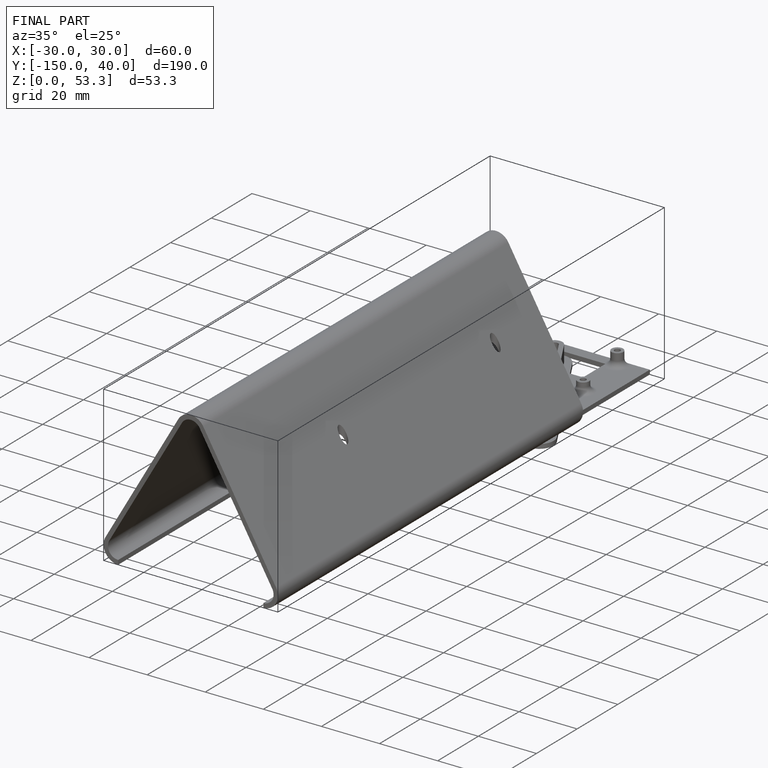
[diagram: finished part — iso view with bounding-box wireframe]
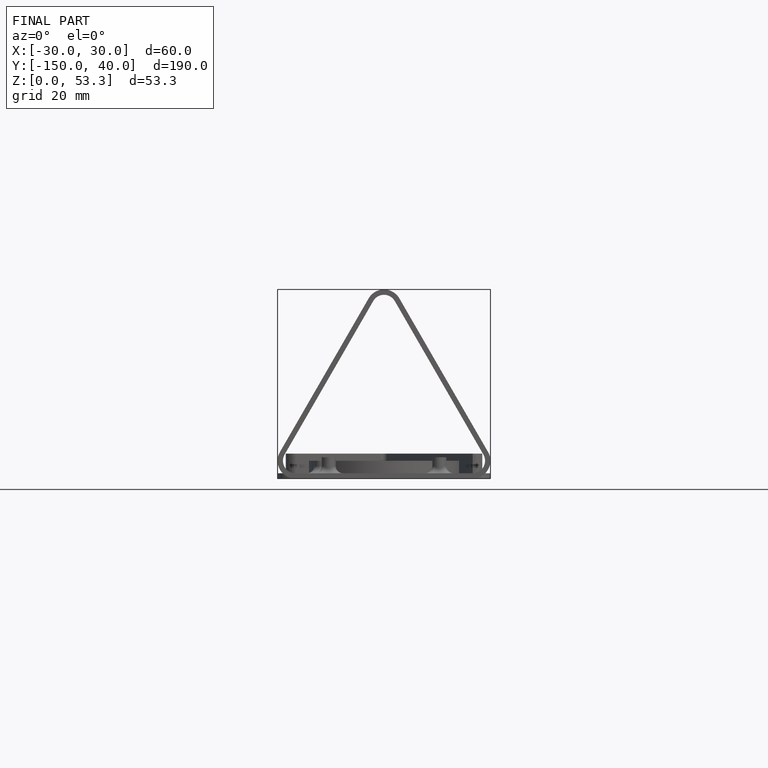
[diagram: finished part — front view with bounding-box wireframe]
